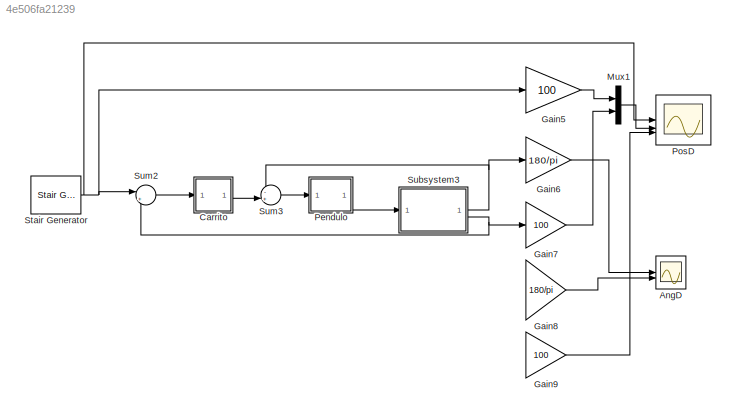
MODEL slx_4e506fa21239
KIND model
CONFIG AbsTol = auto
CONFIG EnableMultiTasking = off
CONFIG FixedStep = Ts
CONFIG MaxStep = auto
CONFIG MinStep = auto
CONFIG RelTol = 1e-3
CONFIG SampleTimeConstraint = Unconstrained
CONFIG SolverName = FixedStepAuto
CONFIG StartTime = 0.0
CONFIG StopTime = 60
BLOCK [Scope] AngD
  Floating = off
  NumInputPorts = 2
  ScopeSpecificationString = Simulink.scopes.TimeScopeBlockCfg('CurrentConfiguration', extmgr.ConfigurationSet(extmgr.Configuration('Core','General UI',true),extmgr.Configuration('Core','Source UI',true),extmgr.Configuration('Sources','WiredSimulink',true,'DataLoggingVariableName','ScopeData1'),extmgr.Configuration('Visuals','Time Domain',true,'SerializedDisplays',{struct('MinYLimReal','-26995743414476035180747993944548800365...<+3240ch>
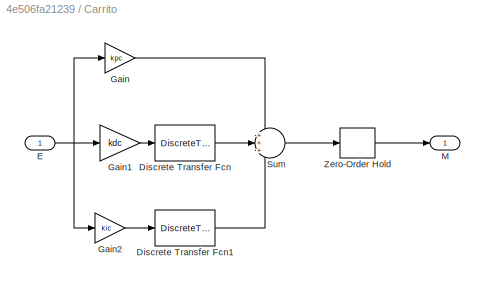
BLOCK [SubSystem] Carrito
BLOCK [DiscreteTransferFcn] Carrito/Discrete Transfer Fcn
  Denominator = Ddc
  InputPortMap = u0
  Numerator = Ndc
  SampleTime = Ts
BLOCK [DiscreteTransferFcn] Carrito/Discrete Transfer Fcn1
  Denominator = Dic
  InputPortMap = u0
  Numerator = Nic
  SampleTime = Ts
BLOCK [Inport] Carrito/E
BLOCK [Gain] Carrito/Gain
  Gain = kpc
BLOCK [Gain] Carrito/Gain1
  Gain = kdc
BLOCK [Gain] Carrito/Gain2
  Gain = kic
BLOCK [Outport] Carrito/M
BLOCK [Sum] Carrito/Sum
  Inputs = +++
BLOCK [ZeroOrderHold] Carrito/Zero-Order Hold
  SampleTime = Ts
BLOCK [Gain] Gain5
  Gain = 100
BLOCK [Gain] Gain6
  Gain = 180/pi
BLOCK [Gain] Gain7
  Gain = 100
BLOCK [Gain] Gain8
  Gain = 180/pi
BLOCK [Gain] Gain9
  Gain = 100
BLOCK [Mux] Mux1
  DisplayOption = bar
  Inputs = 2
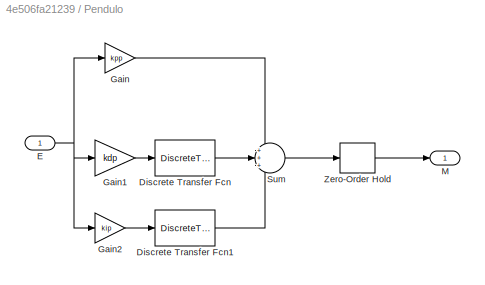
BLOCK [SubSystem] Pendulo
BLOCK [DiscreteTransferFcn] Pendulo/Discrete Transfer Fcn
  Denominator = Ddp
  InputPortMap = u0
  Numerator = Ndp
  SampleTime = Ts
BLOCK [DiscreteTransferFcn] Pendulo/Discrete Transfer Fcn1
  Denominator = Dip
  InputPortMap = u0
  Numerator = Nip
  SampleTime = Ts
BLOCK [Inport] Pendulo/E
BLOCK [Gain] Pendulo/Gain
  Gain = kpp
BLOCK [Gain] Pendulo/Gain1
  Gain = kdp
BLOCK [Gain] Pendulo/Gain2
  Gain = kip
BLOCK [Outport] Pendulo/M
BLOCK [Sum] Pendulo/Sum
  Inputs = +++
BLOCK [ZeroOrderHold] Pendulo/Zero-Order Hold
  SampleTime = Ts
BLOCK [Scope] PosD
  Floating = off
  NumInputPorts = 3
  ScopeSpecificationString = Simulink.scopes.TimeScopeBlockCfg('CurrentConfiguration', extmgr.ConfigurationSet(extmgr.Configuration('Core','General UI',true),extmgr.Configuration('Core','Source UI',true),extmgr.Configuration('Sources','WiredSimulink',true),extmgr.Configuration('Visuals','Time Domain',true,'SerializedDisplays',{struct('MinYLimReal','-83472682381060275870364057704956377160280705850325104240098326918044841194466...<+3962ch>
BLOCK [Reference] Stair Generator  REF=spsStairGeneratorLib/Stair
Generator
  SourceBlock = spsStairGeneratorLib/Stair\nGenerator
  SourceType = Stair Generator
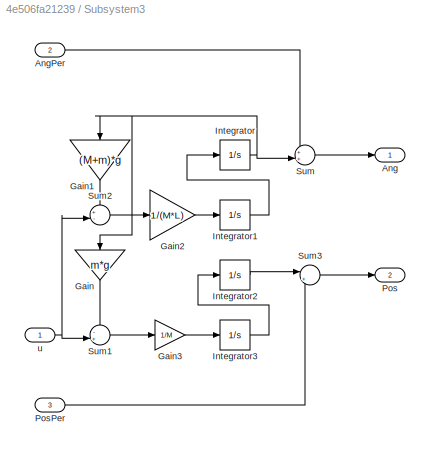
BLOCK [SubSystem] Subsystem3
BLOCK [Outport] Subsystem3/Ang
BLOCK [Inport] Subsystem3/AngPer
  Port = 2
BLOCK [Gain] Subsystem3/Gain
  Gain = m*g
  NameLocation = left
BLOCK [Gain] Subsystem3/Gain1
  Gain = (M+m)*g
  NameLocation = left
BLOCK [Gain] Subsystem3/Gain2
  Gain = 1/(M*L)
BLOCK [Gain] Subsystem3/Gain3
  Gain = 1/M
BLOCK [Integrator] Subsystem3/Integrator
  InitialCondition = 10*pi/180
BLOCK [Integrator] Subsystem3/Integrator1
BLOCK [Integrator] Subsystem3/Integrator2
BLOCK [Integrator] Subsystem3/Integrator3
BLOCK [Outport] Subsystem3/Pos
  Port = 2
BLOCK [Inport] Subsystem3/PosPer
  Port = 3
BLOCK [Sum] Subsystem3/Sum
  Inputs = ++|
BLOCK [Sum] Subsystem3/Sum1
  Inputs = -+|
BLOCK [Sum] Subsystem3/Sum2
  Inputs = +-|
BLOCK [Sum] Subsystem3/Sum3
  Inputs = |++
BLOCK [Inport] Subsystem3/u
BLOCK [Sum] Sum2
  Inputs = |+-
BLOCK [Sum] Sum3
  Inputs = -+|
LINE Carrito/Discrete Transfer Fcn1:1 -> Carrito/Sum:3
LINE Carrito/Discrete Transfer Fcn:1 -> Carrito/Sum:2
NET Carrito/E:1 -> Carrito/Gain1:1, Carrito/Gain2:1, Carrito/Gain:1
LINE Carrito/Gain1:1 -> Carrito/Discrete Transfer Fcn:1
LINE Carrito/Gain2:1 -> Carrito/Discrete Transfer Fcn1:1
LINE Carrito/Gain:1 -> Carrito/Sum:1
LINE Carrito/Sum:1 -> Carrito/Zero-Order Hold:1
LINE Carrito/Zero-Order Hold:1 -> Carrito/M:1
LINE Carrito:1 -> Sum3:2
LINE Gain5:1 -> Mux1:1
LINE Gain6:1 -> AngD:1
LINE Gain7:1 -> Mux1:2
LINE Gain8:1 -> AngD:2
LINE Gain9:1 -> PosD:3
LINE Mux1:1 -> PosD:2
LINE Pendulo/Discrete Transfer Fcn1:1 -> Pendulo/Sum:3
LINE Pendulo/Discrete Transfer Fcn:1 -> Pendulo/Sum:2
NET Pendulo/E:1 -> Pendulo/Gain1:1, Pendulo/Gain2:1, Pendulo/Gain:1
LINE Pendulo/Gain1:1 -> Pendulo/Discrete Transfer Fcn:1
LINE Pendulo/Gain2:1 -> Pendulo/Discrete Transfer Fcn1:1
LINE Pendulo/Gain:1 -> Pendulo/Sum:1
LINE Pendulo/Sum:1 -> Pendulo/Zero-Order Hold:1
LINE Pendulo/Zero-Order Hold:1 -> Pendulo/M:1
LINE Pendulo:1 -> Subsystem3:1
NET Stair Generator:1 -> Gain5:1, PosD:1, Sum2:1
LINE Subsystem3/AngPer:1 -> Subsystem3/Sum:1
LINE Subsystem3/Gain1:1 -> Subsystem3/Sum2:1
LINE Subsystem3/Gain2:1 -> Subsystem3/Integrator1:1
LINE Subsystem3/Gain3:1 -> Subsystem3/Integrator3:1
LINE Subsystem3/Gain:1 -> Subsystem3/Sum1:1
LINE Subsystem3/Integrator1:1 -> Subsystem3/Integrator:1
LINE Subsystem3/Integrator2:1 -> Subsystem3/Sum3:1
LINE Subsystem3/Integrator3:1 -> Subsystem3/Integrator2:1
NET Subsystem3/Integrator:1 -> Subsystem3/Gain1:1, Subsystem3/Gain:1, Subsystem3/Sum:2
LINE Subsystem3/PosPer:1 -> Subsystem3/Sum3:2
LINE Subsystem3/Sum1:1 -> Subsystem3/Gain3:1
LINE Subsystem3/Sum2:1 -> Subsystem3/Gain2:1
LINE Subsystem3/Sum3:1 -> Subsystem3/Pos:1
LINE Subsystem3/Sum:1 -> Subsystem3/Ang:1
NET Subsystem3/u:1 -> Subsystem3/Sum1:2, Subsystem3/Sum2:2
NET Subsystem3:1 -> Gain6:1, Sum3:1
NET Subsystem3:2 -> Gain7:1, Sum2:2
LINE Sum2:1 -> Carrito:1
LINE Sum3:1 -> Pendulo:1
note: NET lines group one-source signal fan-out (src -> all destinations, sorted); 1:1 wires keep LINE
